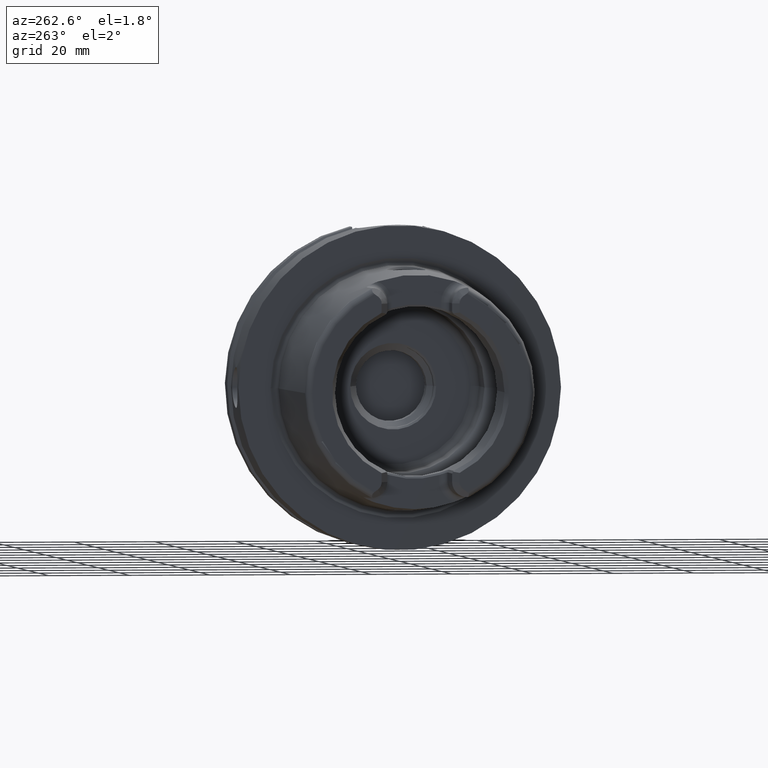
[diagram: clean part render]
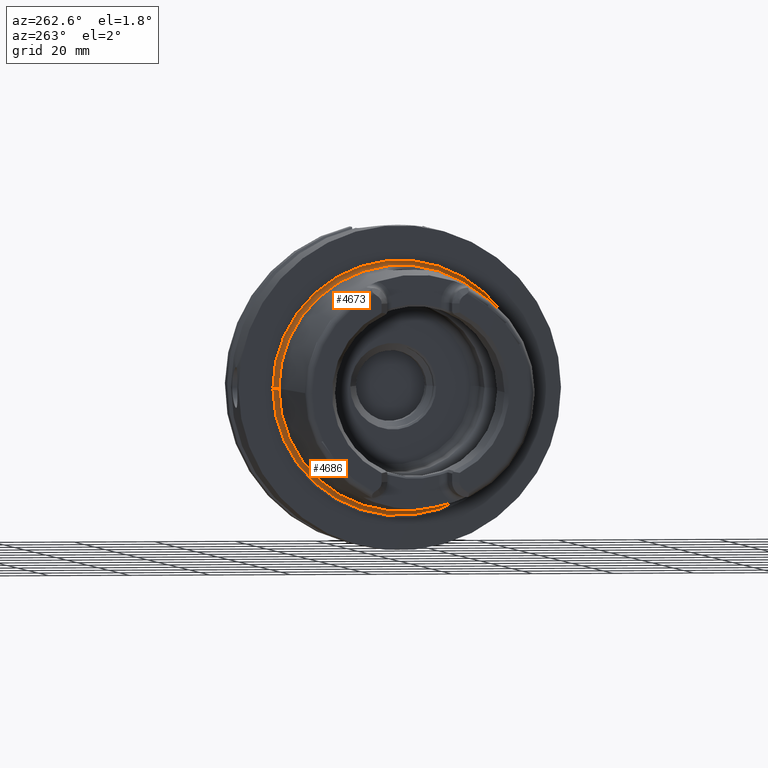
[diagram: same view with one multi-face feature highlighted, each face labeled with its STEP entity id]
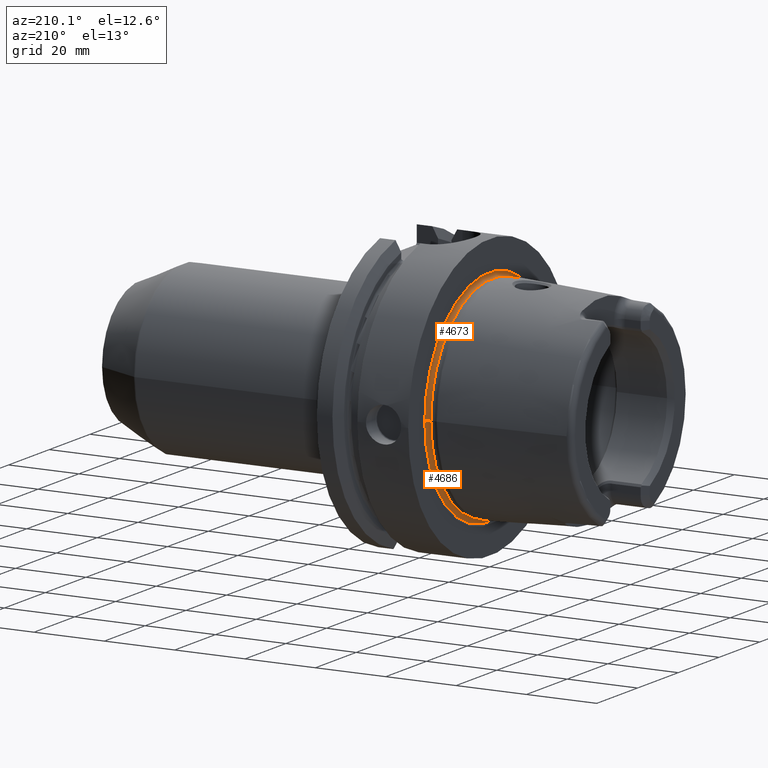
[diagram: same view with one multi-face feature highlighted, each face labeled with its STEP entity id]
A machine part, auxiliary view. The highlighted faces form ONE feature: a constant-radius fillet chain: 2 tangent blend faces with common blend radius 1 mm. The faces share edges in the B-rep.
A second angle (auxiliary view) of the same feature is appended — it is thin or edge-on in the first view.
Their STEP definitions:
[1] entity #4686 (Torus):
#1054=CARTESIAN_POINT('',(-7.005712886803E-1,0.E0,0.E0));
#1055=DIRECTION('',(-1.E0,0.E0,0.E0));
#1056=DIRECTION('',(0.E0,1.E0,0.E0));
#1057=AXIS2_PLACEMENT_3D('',#1054,#1055,#1056);
#1069=CARTESIAN_POINT('',(-7.005712886803E-1,3.108155E1,0.E0));
#1070=DIRECTION('',(0.E0,0.E0,-1.E0));
#1071=DIRECTION('',(9.304175679820E-1,3.665012267243E-1,0.E0));
#1072=AXIS2_PLACEMENT_3D('',#1069,#1070,#1071);
#1074=CARTESIAN_POINT('',(-7.005712886803E-1,-3.108155E1,0.E0));
#1075=DIRECTION('',(0.E0,0.E0,1.E0));
#1076=DIRECTION('',(9.304175679820E-1,-3.665012267243E-1,0.E0));
#1077=AXIS2_PLACEMENT_3D('',#1074,#1075,#1076);
#1079=CARTESIAN_POINT('',(2.298462793018E-1,0.E0,0.E0));
#1080=DIRECTION('',(-1.E0,0.E0,0.E0));
#1081=DIRECTION('',(0.E0,1.E0,0.E0));
#1082=AXIS2_PLACEMENT_3D('',#1079,#1080,#1081);
#2939=CARTESIAN_POINT('',(2.298462793018E-1,-3.144805122672E1,0.E0));
#2940=CARTESIAN_POINT('',(-7.005712886803E-1,-3.008155E1,0.E0));
#2941=VERTEX_POINT('',#2939);
#2942=VERTEX_POINT('',#2940);
#2947=CARTESIAN_POINT('',(2.298462793018E-1,3.144805122672E1,0.E0));
#2948=CARTESIAN_POINT('',(-7.005712886803E-1,3.008155E1,0.E0));
#2949=VERTEX_POINT('',#2947);
#2950=VERTEX_POINT('',#2948);
#4674=CARTESIAN_POINT('',(-7.005712886803E-1,0.E0,0.E0));
#4675=DIRECTION('',(-1.E0,0.E0,0.E0));
#4676=DIRECTION('',(0.E0,-1.E0,0.E0));
#4677=AXIS2_PLACEMENT_3D('',#4674,#4675,#4676);
#4678=TOROIDAL_SURFACE('',#4677,3.108155E1,1.E0);
#4679=ORIENTED_EDGE('',*,*,#4667,.T.);
#4680=ORIENTED_EDGE('',*,*,#4641,.T.);
#4681=ORIENTED_EDGE('',*,*,#4664,.F.);
#4683=ORIENTED_EDGE('',*,*,#4682,.F.);
#4684=EDGE_LOOP('',(#4679,#4680,#4681,#4683));
#4685=FACE_OUTER_BOUND('',#4684,.F.);
#4686=ADVANCED_FACE('',(#4685),#4678,.F.);
#1058=CIRCLE('',#1057,3.008155E1);
#1073=CIRCLE('',#1072,1.E0);
#1078=CIRCLE('',#1077,1.E0);
#1083=CIRCLE('',#1082,3.144805122672E1);
#4641=EDGE_CURVE('',#2950,#2942,#1058,.T.);
#4664=EDGE_CURVE('',#2941,#2942,#1078,.T.);
#4667=EDGE_CURVE('',#2949,#2950,#1073,.T.);
#4682=EDGE_CURVE('',#2949,#2941,#1083,.T.);
[2] entity #4673 (Torus):
#1059=CARTESIAN_POINT('',(-7.005712886803E-1,0.E0,0.E0));
#1060=DIRECTION('',(-1.E0,0.E0,0.E0));
#1061=DIRECTION('',(0.E0,-1.E0,0.E0));
#1062=AXIS2_PLACEMENT_3D('',#1059,#1060,#1061);
#1064=CARTESIAN_POINT('',(2.298462793018E-1,0.E0,0.E0));
#1065=DIRECTION('',(-1.E0,0.E0,0.E0));
#1066=DIRECTION('',(0.E0,-1.E0,0.E0));
#1067=AXIS2_PLACEMENT_3D('',#1064,#1065,#1066);
#1069=CARTESIAN_POINT('',(-7.005712886803E-1,3.108155E1,0.E0));
#1070=DIRECTION('',(0.E0,0.E0,-1.E0));
#1071=DIRECTION('',(9.304175679820E-1,3.665012267243E-1,0.E0));
#1072=AXIS2_PLACEMENT_3D('',#1069,#1070,#1071);
#1074=CARTESIAN_POINT('',(-7.005712886803E-1,-3.108155E1,0.E0));
#1075=DIRECTION('',(0.E0,0.E0,1.E0));
#1076=DIRECTION('',(9.304175679820E-1,-3.665012267243E-1,0.E0));
#1077=AXIS2_PLACEMENT_3D('',#1074,#1075,#1076);
#2939=CARTESIAN_POINT('',(2.298462793018E-1,-3.144805122672E1,0.E0));
#2940=CARTESIAN_POINT('',(-7.005712886803E-1,-3.008155E1,0.E0));
#2941=VERTEX_POINT('',#2939);
#2942=VERTEX_POINT('',#2940);
#2947=CARTESIAN_POINT('',(2.298462793018E-1,3.144805122672E1,0.E0));
#2948=CARTESIAN_POINT('',(-7.005712886803E-1,3.008155E1,0.E0));
#2949=VERTEX_POINT('',#2947);
#2950=VERTEX_POINT('',#2948);
#4659=CARTESIAN_POINT('',(-7.005712886803E-1,0.E0,0.E0));
#4660=DIRECTION('',(-1.E0,0.E0,0.E0));
#4661=DIRECTION('',(0.E0,1.E0,0.E0));
#4662=AXIS2_PLACEMENT_3D('',#4659,#4660,#4661);
#4663=TOROIDAL_SURFACE('',#4662,3.108155E1,1.E0);
#4665=ORIENTED_EDGE('',*,*,#4664,.T.);
#4666=ORIENTED_EDGE('',*,*,#4654,.T.);
#4668=ORIENTED_EDGE('',*,*,#4667,.F.);
#4670=ORIENTED_EDGE('',*,*,#4669,.F.);
#4671=EDGE_LOOP('',(#4665,#4666,#4668,#4670));
#4672=FACE_OUTER_BOUND('',#4671,.F.);
#4673=ADVANCED_FACE('',(#4672),#4663,.F.);
#1063=CIRCLE('',#1062,3.008155E1);
#1068=CIRCLE('',#1067,3.144805122672E1);
#1073=CIRCLE('',#1072,1.E0);
#1078=CIRCLE('',#1077,1.E0);
#4654=EDGE_CURVE('',#2942,#2950,#1063,.T.);
#4664=EDGE_CURVE('',#2941,#2942,#1078,.T.);
#4667=EDGE_CURVE('',#2949,#2950,#1073,.T.);
#4669=EDGE_CURVE('',#2941,#2949,#1068,.T.);